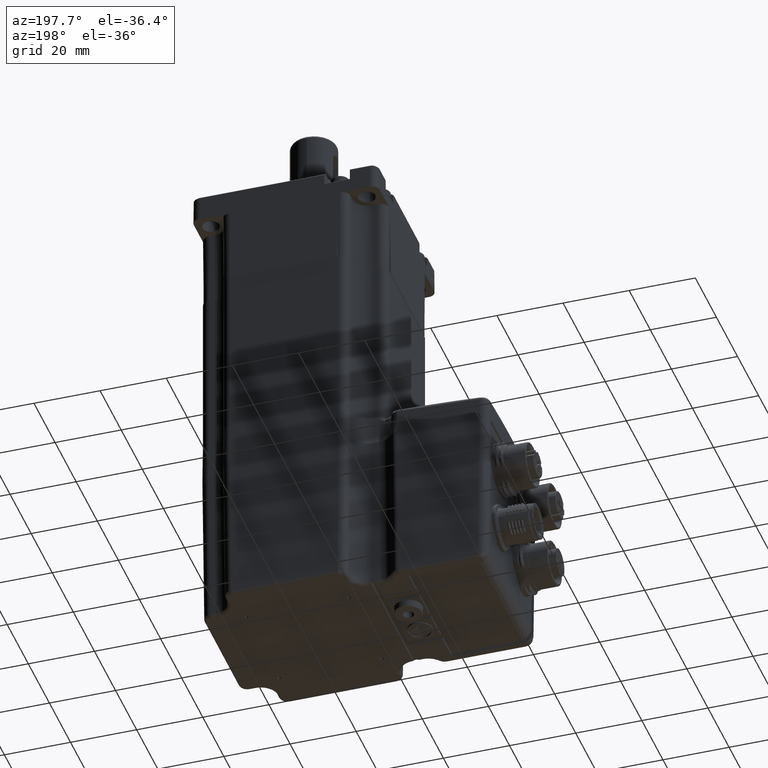
[diagram: clean part render]
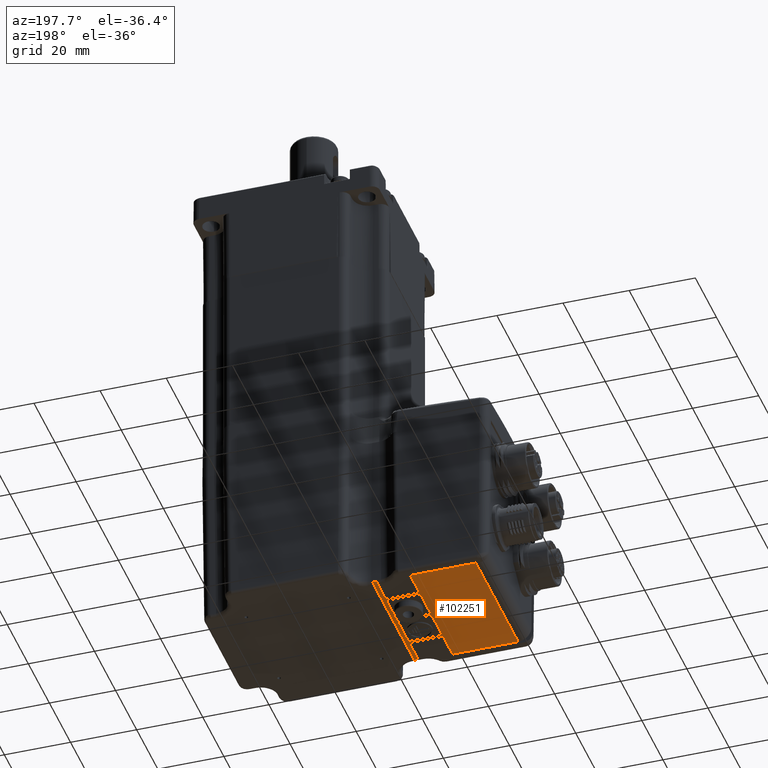
[diagram: same view with one face highlighted and labeled with its STEP entity id]
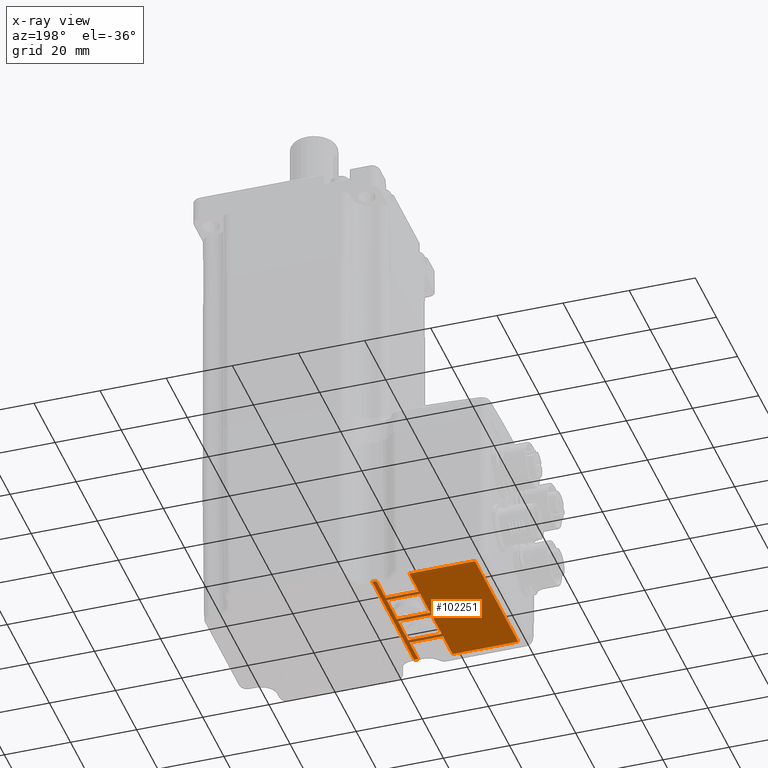
[diagram: x-ray of the same camera — body ghosted, the highlighted face saturated]
A machine part, auxiliary view. The second image highlights one B-rep face of the part: STEP entity #102251.
The next image is the same camera in x-ray: the body ghosted, the highlighted face saturated — about 0% of this face is hidden behind the body in this view.
In plain terms, the highlighted planar face has unit normal (-0, 0, 1).
Its self-contained STEP definition (entity closure, byte-faithful):
#958 = DIRECTION ( 'NONE',  ( -0.000000000000000000, 1.000000000000000000, -0.000000000000000000 ) ) ;
#1603 = DIRECTION ( 'NONE',  ( -1.000000000000000000, 6.643654906703352785E-17, -3.469420530973028454E-16 ) ) ;
#1646 = EDGE_CURVE ( 'NONE', #49712, #15942, #57998, .T. ) ;
#1978 = LINE ( 'NONE', #51493, #102771 ) ;
#2200 = EDGE_LOOP ( 'NONE', ( #8201, #81854, #72831, #12882, #21418, #122353, #55112, #16429, #18225, #66911, #86989, #82552 ) ) ;
#3362 = DIRECTION ( 'NONE',  ( 1.000000000000000000, 1.470104640658311642E-15, -0.000000000000000000 ) ) ;
#3583 = VERTEX_POINT ( 'NONE', #34573 ) ;
#3729 = LINE ( 'NONE', #71387, #43663 ) ;
#3820 = ORIENTED_EDGE ( 'NONE', *, *, #40620, .T. ) ;
#3878 = EDGE_LOOP ( 'NONE', ( #19048, #65302, #55892, #3820 ) ) ;
#4168 = LINE ( 'NONE', #32419, #56535 ) ;
#4601 = LINE ( 'NONE', #69177, #115127 ) ;
#5014 = LINE ( 'NONE', #62056, #86561 ) ;
#6524 = VERTEX_POINT ( 'NONE', #31271 ) ;
#7810 = EDGE_CURVE ( 'NONE', #8437, #19768, #17720, .T. ) ;
#8085 = VERTEX_POINT ( 'NONE', #62093 ) ;
#8153 = ORIENTED_EDGE ( 'NONE', *, *, #123607, .T. ) ;
#8201 = ORIENTED_EDGE ( 'NONE', *, *, #41338, .T. ) ;
#8437 = VERTEX_POINT ( 'NONE', #99647 ) ;
#8464 = DIRECTION ( 'NONE',  ( 1.000000000000000000, 0.000000000000000000, 3.469420530973028454E-16 ) ) ;
#9057 = DIRECTION ( 'NONE',  ( -3.469420530973028454E-16, 0.000000000000000000, 1.000000000000000000 ) ) ;
#9141 = CARTESIAN_POINT ( 'NONE',  ( -55.19177021425039698, 20.50000000000000000, -102.3000000000447045 ) ) ;
#10819 = DIRECTION ( 'NONE',  ( 1.000000000000000000, 0.000000000000000000, 3.469420530973028454E-16 ) ) ;
#11886 = EDGE_CURVE ( 'NONE', #6524, #102679, #19387, .T. ) ;
#12718 = CARTESIAN_POINT ( 'NONE',  ( -25.39999999999999858, 0.6034605473768649420, -102.3000000000446903 ) ) ;
#12882 = ORIENTED_EDGE ( 'NONE', *, *, #78782, .T. ) ;
#13052 = AXIS2_PLACEMENT_3D ( 'NONE', #123718, #9057, #8464 ) ;
#13509 = DIRECTION ( 'NONE',  ( -0.000000000000000000, 1.000000000000000000, -0.000000000000000000 ) ) ;
#14212 = DIRECTION ( 'NONE',  ( 1.000000000000000000, 1.771641308454227738E-16, 3.469420530973028454E-16 ) ) ;
#14442 = DIRECTION ( 'NONE',  ( 1.000000000000000000, -3.543282616908454983E-16, 3.469420530973028454E-16 ) ) ;
#14864 = VERTEX_POINT ( 'NONE', #21209 ) ;
#15620 = VECTOR ( 'NONE', #50975, 1000.000000000000000 ) ;
#15942 = VERTEX_POINT ( 'NONE', #26708 ) ;
#16156 = VECTOR ( 'NONE', #105281, 1000.000000000000000 ) ;
#16429 = ORIENTED_EDGE ( 'NONE', *, *, #37245, .T. ) ;
#17720 = LINE ( 'NONE', #45950, #87286 ) ;
#18119 = DIRECTION ( 'NONE',  ( -1.000000000000000000, 5.314923925362682228E-16, -3.469420530973028454E-16 ) ) ;
#18225 = ORIENTED_EDGE ( 'NONE', *, *, #1646, .T. ) ;
#19039 = CARTESIAN_POINT ( 'NONE',  ( -55.19177021425039698, 20.50000000000000000, -102.3000000000447045 ) ) ;
#19048 = ORIENTED_EDGE ( 'NONE', *, *, #62738, .T. ) ;
#19387 = LINE ( 'NONE', #66957, #16156 ) ;
#19651 = EDGE_CURVE ( 'NONE', #96019, #8437, #77268, .T. ) ;
#19728 = DIRECTION ( 'NONE',  ( -1.000000000000000000, 1.470104640658311642E-15, 0.000000000000000000 ) ) ;
#19768 = VERTEX_POINT ( 'NONE', #40913 ) ;
#21209 = CARTESIAN_POINT ( 'NONE',  ( -23.99653945262313570, -19.93169294830794769, -102.3000000000446903 ) ) ;
#21418 = ORIENTED_EDGE ( 'NONE', *, *, #79824, .T. ) ;
#23696 = EDGE_CURVE ( 'NONE', #66882, #6524, #29882, .T. ) ;
#26708 = CARTESIAN_POINT ( 'NONE',  ( -25.20346054737686003, -11.39999999999999147, -102.3000000000446903 ) ) ;
#29882 = LINE ( 'NONE', #96933, #47976 ) ;
#30000 = VERTEX_POINT ( 'NONE', #57877 ) ;
#30724 = DIRECTION ( 'NONE',  ( 1.000000000000000000, 0.000000000000000000, 3.469420530973028454E-16 ) ) ;
#31271 = CARTESIAN_POINT ( 'NONE',  ( -35.38815735913021143, -0.5999999999999976463, -102.3000000000446903 ) ) ;
#32058 = CARTESIAN_POINT ( 'NONE',  ( -25.20346054737686003, 0.6034605473768649420, -102.3000000000446903 ) ) ;
#32268 = VECTOR ( 'NONE', #33137, 1000.000000000000000 ) ;
#32419 = CARTESIAN_POINT ( 'NONE',  ( -25.39999999999999858, 11.40346054737685755, -102.3000000000446903 ) ) ;
#32794 = VECTOR ( 'NONE', #30724, 1000.000000000000000 ) ;
#33137 = DIRECTION ( 'NONE',  ( -0.000000000000000000, 1.000000000000000000, -0.000000000000000000 ) ) ;
#34573 = CARTESIAN_POINT ( 'NONE',  ( -35.38815735913021143, -11.39999999999998614, -102.3000000000446903 ) ) ;
#35069 = CARTESIAN_POINT ( 'NONE',  ( -25.20346054737686003, 11.40346054737685755, -102.3000000000446903 ) ) ;
#37245 = EDGE_CURVE ( 'NONE', #14864, #49712, #39139, .T. ) ;
#37324 = EDGE_CURVE ( 'NONE', #39972, #120823, #4601, .T. ) ;
#39139 = LINE ( 'NONE', #85507, #93162 ) ;
#39972 = VERTEX_POINT ( 'NONE', #77462 ) ;
#40620 = EDGE_CURVE ( 'NONE', #102213, #76413, #69767, .T. ) ;
#40913 = CARTESIAN_POINT ( 'NONE',  ( -35.38815735913021143, 11.40346054737685577, -102.3000000000446903 ) ) ;
#41338 = EDGE_CURVE ( 'NONE', #118868, #96019, #111757, .T. ) ;
#41918 = VECTOR ( 'NONE', #72828, 1000.000000000000000 ) ;
#43321 = CARTESIAN_POINT ( 'NONE',  ( -35.38815735913021143, -10.19653945262312433, -102.3000000000446903 ) ) ;
#43663 = VECTOR ( 'NONE', #117181, 1000.000000000000000 ) ;
#44245 = CARTESIAN_POINT ( 'NONE',  ( -35.38815735913021143, 0.6034605473768664963, -102.3000000000446903 ) ) ;
#45950 = CARTESIAN_POINT ( 'NONE',  ( -35.38815735913021143, -20.50000000000000000, -102.3000000000446903 ) ) ;
#47976 = VECTOR ( 'NONE', #1603, 1000.000000000000000 ) ;
#49496 = LINE ( 'NONE', #87713, #32794 ) ;
#49712 = VERTEX_POINT ( 'NONE', #58674 ) ;
#50321 = CARTESIAN_POINT ( 'NONE',  ( -35.19161790650709065, 10.19999999999999751, -102.3000000000446903 ) ) ;
#50534 = LINE ( 'NONE', #107569, #112523 ) ;
#50975 = DIRECTION ( 'NONE',  ( 1.000000000000000000, -1.550186144897449024E-16, 3.469420530973028454E-16 ) ) ;
#51493 = CARTESIAN_POINT ( 'NONE',  ( -35.38815735913021143, -20.50000000000000000, -102.3000000000446903 ) ) ;
#53255 = VECTOR ( 'NONE', #88546, 1000.000000000000000 ) ;
#55112 = ORIENTED_EDGE ( 'NONE', *, *, #60809, .T. ) ;
#55892 = ORIENTED_EDGE ( 'NONE', *, *, #123973, .T. ) ;
#56102 = DIRECTION ( 'NONE',  ( -0.000000000000000000, -1.000000000000000000, -0.000000000000000000 ) ) ;
#56535 = VECTOR ( 'NONE', #14212, 1000.000000000000000 ) ;
#56586 = DIRECTION ( 'NONE',  ( -0.000000000000000000, -1.000000000000000000, -0.000000000000000000 ) ) ;
#57877 = CARTESIAN_POINT ( 'NONE',  ( -25.20346054737686003, 10.19999999999999929, -102.3000000000446903 ) ) ;
#57998 = LINE ( 'NONE', #96886, #69682 ) ;
#58674 = CARTESIAN_POINT ( 'NONE',  ( -25.20346054737685293, -19.93169294830794414, -102.3000000000446903 ) ) ;
#59862 = EDGE_CURVE ( 'NONE', #3583, #99889, #100207, .T. ) ;
#60809 = EDGE_CURVE ( 'NONE', #120823, #14864, #95596, .T. ) ;
#62056 = CARTESIAN_POINT ( 'NONE',  ( -25.39999999999999858, -10.19653945262312789, -102.3000000000446903 ) ) ;
#62093 = CARTESIAN_POINT ( 'NONE',  ( -35.38815735913021143, 10.19999999999999751, -102.3000000000446903 ) ) ;
#62738 = EDGE_CURVE ( 'NONE', #76413, #30000, #3729, .T. ) ;
#64173 = VECTOR ( 'NONE', #81902, 1000.000000000000000 ) ;
#65302 = ORIENTED_EDGE ( 'NONE', *, *, #82901, .T. ) ;
#65319 = CARTESIAN_POINT ( 'NONE',  ( -23.99653945262313570, 19.93169294830795479, -102.3000000000446903 ) ) ;
#65489 = FACE_OUTER_BOUND ( 'NONE', #2200, .T. ) ;
#66882 = VERTEX_POINT ( 'NONE', #88739 ) ;
#66911 = ORIENTED_EDGE ( 'NONE', *, *, #84852, .T. ) ;
#66957 = CARTESIAN_POINT ( 'NONE',  ( -35.38815735913021143, -20.50000000000000000, -102.3000000000446903 ) ) ;
#67567 = CARTESIAN_POINT ( 'NONE',  ( -35.19161790650709065, -11.39999999999998614, -102.3000000000446903 ) ) ;
#68758 = EDGE_LOOP ( 'NONE', ( #8153, #121402, #76811, #112462 ) ) ;
#69177 = CARTESIAN_POINT ( 'NONE',  ( -2.919759168355493156E-14, 19.93169294830799032, -102.3000000000446903 ) ) ;
#69682 = VECTOR ( 'NONE', #958, 1000.000000000000000 ) ;
#69767 = LINE ( 'NONE', #12718, #15620 ) ;
#70095 = CARTESIAN_POINT ( 'NONE',  ( -25.20346054737686003, -0.7999999999999951594, -102.3000000000446903 ) ) ;
#70271 = DIRECTION ( 'NONE',  ( -0.000000000000000000, -1.000000000000000000, -0.000000000000000000 ) ) ;
#71387 = CARTESIAN_POINT ( 'NONE',  ( -25.20346054737686003, 9.999999999999994671, -102.3000000000446903 ) ) ;
#72828 = DIRECTION ( 'NONE',  ( 0.000000000000000000, 1.000000000000000000, 0.000000000000000000 ) ) ;
#72831 = ORIENTED_EDGE ( 'NONE', *, *, #7810, .T. ) ;
#75996 = CARTESIAN_POINT ( 'NONE',  ( -35.38815735913021143, -20.50000000000000000, -102.3000000000446903 ) ) ;
#76413 = VERTEX_POINT ( 'NONE', #32058 ) ;
#76811 = ORIENTED_EDGE ( 'NONE', *, *, #11886, .T. ) ;
#77268 = LINE ( 'NONE', #19039, #84166 ) ;
#77462 = CARTESIAN_POINT ( 'NONE',  ( -25.20346054737685293, 19.93169294830795124, -102.3000000000446903 ) ) ;
#78782 = EDGE_CURVE ( 'NONE', #19768, #93982, #4168, .T. ) ;
#79824 = EDGE_CURVE ( 'NONE', #93982, #39972, #50534, .T. ) ;
#80172 = EDGE_CURVE ( 'NONE', #102679, #119878, #5014, .T. ) ;
#81854 = ORIENTED_EDGE ( 'NONE', *, *, #19651, .T. ) ;
#81902 = DIRECTION ( 'NONE',  ( -0.000000000000000000, -1.000000000000000000, -0.000000000000000000 ) ) ;
#82552 = ORIENTED_EDGE ( 'NONE', *, *, #118715, .F. ) ;
#82901 = EDGE_CURVE ( 'NONE', #30000, #8085, #93034, .T. ) ;
#84166 = VECTOR ( 'NONE', #10819, 1000.000000000000000 ) ;
#84852 = EDGE_CURVE ( 'NONE', #15942, #3583, #105256, .T. ) ;
#85493 = CARTESIAN_POINT ( 'NONE',  ( -23.99653945262314281, -19.93169294830794414, -102.3000000000446903 ) ) ;
#85507 = CARTESIAN_POINT ( 'NONE',  ( -2.919759168355491894E-14, -19.93169294830798322, -102.3000000000446903 ) ) ;
#86561 = VECTOR ( 'NONE', #14442, 1000.000000000000000 ) ;
#86989 = ORIENTED_EDGE ( 'NONE', *, *, #59862, .T. ) ;
#87286 = VECTOR ( 'NONE', #56586, 1000.000000000000000 ) ;
#87713 = CARTESIAN_POINT ( 'NONE',  ( -55.19177021425039698, -20.50000000000000000, -102.3000000000447045 ) ) ;
#88546 = DIRECTION ( 'NONE',  ( -1.000000000000000000, -1.771641308454227245E-16, -3.469420530973028454E-16 ) ) ;
#88739 = CARTESIAN_POINT ( 'NONE',  ( -25.20346054737686003, -0.5999999999999983125, -102.3000000000446903 ) ) ;
#92322 = CARTESIAN_POINT ( 'NONE',  ( -55.19177021425039698, -20.50000000000000000, -102.3000000000447045 ) ) ;
#92519 = FACE_BOUND ( 'NONE', #3878, .T. ) ;
#93034 = LINE ( 'NONE', #50321, #53255 ) ;
#93135 = FACE_BOUND ( 'NONE', #68758, .T. ) ;
#93162 = VECTOR ( 'NONE', #19728, 1000.000000000000000 ) ;
#93982 = VERTEX_POINT ( 'NONE', #35069 ) ;
#95596 = LINE ( 'NONE', #85493, #118665 ) ;
#96019 = VERTEX_POINT ( 'NONE', #9141 ) ;
#96886 = CARTESIAN_POINT ( 'NONE',  ( -25.20346054737686003, -11.59999999999999254, -102.3000000000446903 ) ) ;
#96933 = CARTESIAN_POINT ( 'NONE',  ( -35.19161790650709065, -0.5999999999999976463, -102.3000000000446903 ) ) ;
#98996 = LINE ( 'NONE', #70095, #32268 ) ;
#99647 = CARTESIAN_POINT ( 'NONE',  ( -35.38815735913021143, 20.50000000000000000, -102.3000000000446903 ) ) ;
#99889 = VERTEX_POINT ( 'NONE', #75996 ) ;
#100207 = LINE ( 'NONE', #108971, #64173 ) ;
#100338 = VECTOR ( 'NONE', #18119, 1000.000000000000000 ) ;
#100504 = CARTESIAN_POINT ( 'NONE',  ( -55.19177021425039698, -20.50000000000000000, -102.3000000000447045 ) ) ;
#102213 = VERTEX_POINT ( 'NONE', #44245 ) ;
#102251 = ADVANCED_FACE ( 'NONE', ( #65489, #93135, #92519 ), #111337, .F. ) ;
#102679 = VERTEX_POINT ( 'NONE', #43321 ) ;
#102771 = VECTOR ( 'NONE', #70271, 1000.000000000000000 ) ;
#105256 = LINE ( 'NONE', #67567, #100338 ) ;
#105281 = DIRECTION ( 'NONE',  ( -0.000000000000000000, -1.000000000000000000, -0.000000000000000000 ) ) ;
#107569 = CARTESIAN_POINT ( 'NONE',  ( -25.20346054737686003, 19.93169294830795124, -102.3000000000446903 ) ) ;
#108971 = CARTESIAN_POINT ( 'NONE',  ( -35.38815735913021143, -20.50000000000000000, -102.3000000000446903 ) ) ;
#111337 = PLANE ( 'NONE',  #13052 ) ;
#111757 = LINE ( 'NONE', #92322, #41918 ) ;
#112462 = ORIENTED_EDGE ( 'NONE', *, *, #80172, .T. ) ;
#112523 = VECTOR ( 'NONE', #13509, 1000.000000000000000 ) ;
#115127 = VECTOR ( 'NONE', #3362, 1000.000000000000000 ) ;
#117181 = DIRECTION ( 'NONE',  ( -0.000000000000000000, 1.000000000000000000, -0.000000000000000000 ) ) ;
#118665 = VECTOR ( 'NONE', #56102, 1000.000000000000000 ) ;
#118715 = EDGE_CURVE ( 'NONE', #118868, #99889, #49496, .T. ) ;
#118868 = VERTEX_POINT ( 'NONE', #100504 ) ;
#119068 = CARTESIAN_POINT ( 'NONE',  ( -25.20346054737686003, -10.19653945262312789, -102.3000000000446903 ) ) ;
#119878 = VERTEX_POINT ( 'NONE', #119068 ) ;
#120823 = VERTEX_POINT ( 'NONE', #65319 ) ;
#121402 = ORIENTED_EDGE ( 'NONE', *, *, #23696, .T. ) ;
#122353 = ORIENTED_EDGE ( 'NONE', *, *, #37324, .T. ) ;
#123607 = EDGE_CURVE ( 'NONE', #119878, #66882, #98996, .T. ) ;
#123718 = CARTESIAN_POINT ( 'NONE',  ( -55.19177021425039698, -20.50000000000000000, -102.3000000000447045 ) ) ;
#123973 = EDGE_CURVE ( 'NONE', #8085, #102213, #1978, .T. ) ;